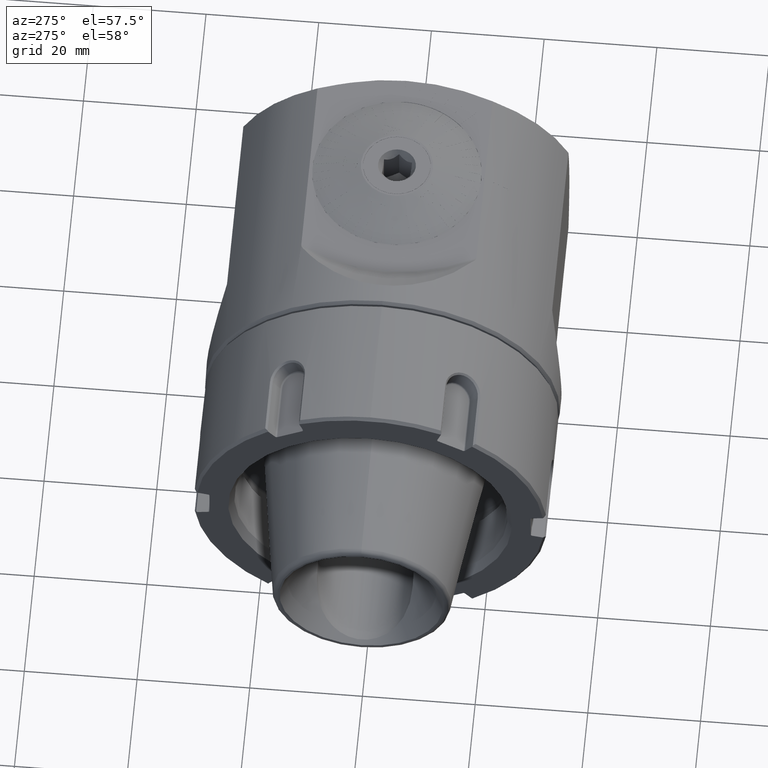
[diagram: clean part render]
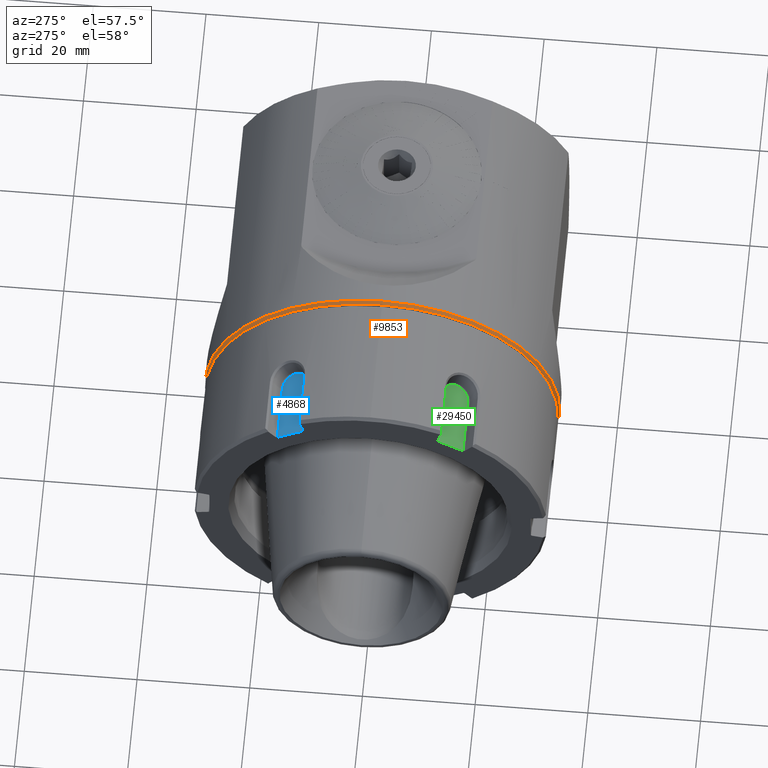
[diagram: same view with three faces highlighted in distinct colors, each labeled with its STEP entity id]
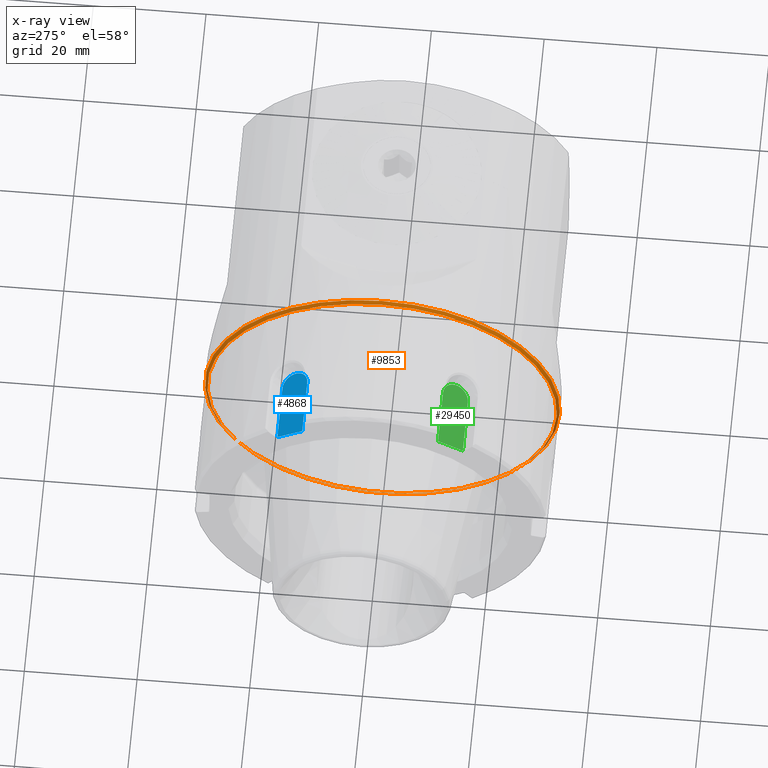
[diagram: x-ray of the same camera — body ghosted, the three highlighted faces saturated]
A machine part, auxiliary view with three faces highlighted in distinct colors.
The next image is the same camera in x-ray (body ghosted, the three faces saturated) — at least one of them is partly hidden behind the body in this view.
Their STEP definitions:

[orange] entity #9853 — the highlighted conical surface has half-angle 45 deg.
#984 = FACE_BOUND ( 'NONE', #7465, .T. ) ;
#1616 = AXIS2_PLACEMENT_3D ( 'NONE', #2303, #2917, #26488 ) ;
#1628 = AXIS2_PLACEMENT_3D ( 'NONE', #24349, #3242, #5686 ) ;
#2303 = CARTESIAN_POINT ( 'NONE',  ( 0.4999999999999865700, 0.0000000000000000000, 0.0000000000000000000 ) ) ;
#2917 = DIRECTION ( 'NONE',  ( 1.000000000000000000, 0.0000000000000000000, 0.0000000000000000000 ) ) ;
#3242 = DIRECTION ( 'NONE',  ( -1.000000000000000000, -0.0000000000000000000, -0.0000000000000000000 ) ) ;
#3847 = DIRECTION ( 'NONE',  ( -1.000000000000000000, -0.0000000000000000000, -0.0000000000000000000 ) ) ;
#4690 = FACE_OUTER_BOUND ( 'NONE', #23499, .T. ) ;
#5686 = DIRECTION ( 'NONE',  ( 0.0000000000000000000, 0.0000000000000000000, 1.000000000000000000 ) ) ;
#7465 = EDGE_LOOP ( 'NONE', ( #17324 ) ) ;
#8709 = VERTEX_POINT ( 'NONE', #12274 ) ;
#9853 = ADVANCED_FACE ( 'NONE', ( #984, #4690 ), #18318, .T. ) ;
#9928 = CIRCLE ( 'NONE', #26491, 31.50000000000000000 ) ;
#12274 = CARTESIAN_POINT ( 'NONE',  ( -1.387778780781445700E-014, 0.0000000000000000000, 31.00000000000000700 ) ) ;
#14561 = CARTESIAN_POINT ( 'NONE',  ( 0.4999999999999865700, 0.0000000000000000000, 31.50000000000000000 ) ) ;
#15723 = DIRECTION ( 'NONE',  ( 0.0000000000000000000, 0.0000000000000000000, 1.000000000000000000 ) ) ;
#17324 = ORIENTED_EDGE ( 'NONE', *, *, #30406, .F. ) ;
#18318 = CONICAL_SURFACE ( 'NONE', #1616, 31.50000000000000000, 0.7853981633974415100 ) ;
#21687 = CIRCLE ( 'NONE', #1628, 31.00000000000000700 ) ;
#23499 = EDGE_LOOP ( 'NONE', ( #25840 ) ) ;
#24349 = CARTESIAN_POINT ( 'NONE',  ( -1.387778780781445700E-014, 0.0000000000000000000, 0.0000000000000000000 ) ) ;
#25840 = ORIENTED_EDGE ( 'NONE', *, *, #30479, .T. ) ;
#26488 = DIRECTION ( 'NONE',  ( 0.0000000000000000000, 0.0000000000000000000, -1.000000000000000000 ) ) ;
#26491 = AXIS2_PLACEMENT_3D ( 'NONE', #27330, #3847, #15723 ) ;
#27330 = CARTESIAN_POINT ( 'NONE',  ( 0.4999999999999865700, 0.0000000000000000000, 0.0000000000000000000 ) ) ;
#30049 = VERTEX_POINT ( 'NONE', #14561 ) ;
#30406 = EDGE_CURVE ( 'NONE', #8709, #8709, #21687, .T. ) ;
#30479 = EDGE_CURVE ( 'NONE', #30049, #30049, #9928, .T. ) ;

[blue] entity #4868 — the highlighted planar face has unit normal (0, 0.5, 0.866).
#151 = LINE ( 'NONE', #20728, #11944 ) ;
#558 = DIRECTION ( 'NONE',  ( 1.000000000000000000, 7.364287248711515300E-017, -4.251773225433436700E-017 ) ) ;
#1517 = EDGE_CURVE ( 'NONE', #30126, #17391, #14602, .T. ) ;
#1748 = CARTESIAN_POINT ( 'NONE',  ( -2.300000000000004300, 14.25000000000028800, 24.68172400785633500 ) ) ;
#1964 = EDGE_CURVE ( 'NONE', #17391, #21335, #151, .T. ) ;
#2846 = EDGE_CURVE ( 'NONE', #21335, #4451, #3027, .T. ) ;
#3027 = LINE ( 'NONE', #28771, #3768 ) ;
#3479 = FACE_OUTER_BOUND ( 'NONE', #16808, .T. ) ;
#3768 = VECTOR ( 'NONE', #558, 1000.000000000000000 ) ;
#4418 = PLANE ( 'NONE',  #6127 ) ;
#4451 = VERTEX_POINT ( 'NONE', #25480 ) ;
#4586 = CARTESIAN_POINT ( 'NONE',  ( -2.300000000000003400, 16.45686665152499700, 23.40758895253290500 ) ) ;
#4868 = ADVANCED_FACE ( 'NONE', ( #3479 ), #4418, .T. ) ;
#4873 = ORIENTED_EDGE ( 'NONE', *, *, #2846, .T. ) ;
#6127 = AXIS2_PLACEMENT_3D ( 'NONE', #1748, #30029, #20798 ) ;
#8423 = DIRECTION ( 'NONE',  ( 0.0000000000000000000, -0.8660254037844329300, 0.5000000000000098800 ) ) ;
#9395 = CARTESIAN_POINT ( 'NONE',  ( -12.50000000000000400, 16.45686665152499700, 23.40758895253290500 ) ) ;
#9833 = CARTESIAN_POINT ( 'NONE',  ( -12.50000000000000400, 12.04313334847557600, 25.95585906317977300 ) ) ;
#10277 = ORIENTED_EDGE ( 'NONE', *, *, #1517, .T. ) ;
#11047 = DIRECTION ( 'NONE',  ( 0.0000000000000000000, -0.8660254037844328200, 0.5000000000000101000 ) ) ;
#11944 = VECTOR ( 'NONE', #11047, 1000.000000000000000 ) ;
#14567 = EDGE_CURVE ( 'NONE', #4451, #30126, #21029, .T. ) ;
#14602 = LINE ( 'NONE', #21173, #26365 ) ;
#16808 = EDGE_LOOP ( 'NONE', ( #25536, #10277, #23159, #4873 ) ) ;
#17391 = VERTEX_POINT ( 'NONE', #9395 ) ;
#20728 = CARTESIAN_POINT ( 'NONE',  ( -12.50000000000000400, 11.82512886940387600, 26.08172400785636600 ) ) ;
#20798 = DIRECTION ( 'NONE',  ( 0.0000000000000000000, -0.8660254037844328200, 0.5000000000000101000 ) ) ;
#21029 = CIRCLE ( 'NONE', #24832, 2.548270110646814400 ) ;
#21173 = CARTESIAN_POINT ( 'NONE',  ( -12.50000000000000400, 16.45686665152499700, 23.40758895253290500 ) ) ;
#21335 = VERTEX_POINT ( 'NONE', #9833 ) ;
#23159 = ORIENTED_EDGE ( 'NONE', *, *, #1964, .T. ) ;
#24832 = AXIS2_PLACEMENT_3D ( 'NONE', #27470, #25311, #8423 ) ;
#25311 = DIRECTION ( 'NONE',  ( 0.0000000000000000000, 0.5000000000000101000, 0.8660254037844328200 ) ) ;
#25480 = CARTESIAN_POINT ( 'NONE',  ( -2.300000000000003800, 12.04313334847557800, 25.95585906317977300 ) ) ;
#25536 = ORIENTED_EDGE ( 'NONE', *, *, #14567, .T. ) ;
#25609 = DIRECTION ( 'NONE',  ( -1.000000000000000000, 7.364287248711515300E-017, -4.251773225433436700E-017 ) ) ;
#26365 = VECTOR ( 'NONE', #25609, 1000.000000000000000 ) ;
#27470 = CARTESIAN_POINT ( 'NONE',  ( -2.300000000000004300, 14.25000000000028600, 24.68172400785633500 ) ) ;
#28771 = CARTESIAN_POINT ( 'NONE',  ( -2.300000000000003800, 12.04313334847557800, 25.95585906317977300 ) ) ;
#30029 = DIRECTION ( 'NONE',  ( 0.0000000000000000000, 0.5000000000000101000, 0.8660254037844328200 ) ) ;
#30126 = VERTEX_POINT ( 'NONE', #4586 ) ;

[green] entity #29450 — the highlighted planar face has unit normal (0, -0.5, 0.866).
#1052 = ORIENTED_EDGE ( 'NONE', *, *, #2754, .T. ) ;
#1724 = DIRECTION ( 'NONE',  ( 0.0000000000000000000, -0.8660254037844432600, -0.4999999999999919500 ) ) ;
#1804 = DIRECTION ( 'NONE',  ( 0.0000000000000000000, -0.8660254037844433700, -0.4999999999999919000 ) ) ;
#1843 = VECTOR ( 'NONE', #1724, 1000.000000000000000 ) ;
#1873 = CARTESIAN_POINT ( 'NONE',  ( -2.300000000000003800, -16.45686665152450300, 23.40758895253324600 ) ) ;
#2541 = LINE ( 'NONE', #1873, #26847 ) ;
#2754 = EDGE_CURVE ( 'NONE', #26156, #18259, #21473, .T. ) ;
#5458 = DIRECTION ( 'NONE',  ( 0.0000000000000000000, -0.4999999999999919500, 0.8660254037844432600 ) ) ;
#5620 = ORIENTED_EDGE ( 'NONE', *, *, #15946, .T. ) ;
#8722 = CARTESIAN_POINT ( 'NONE',  ( -12.50000000000000400, -16.67487113059621300, 23.28172400785665600 ) ) ;
#8983 = DIRECTION ( 'NONE',  ( 1.000000000000000000, 7.364287248711604000E-017, 4.251773225433282000E-017 ) ) ;
#9259 = ORIENTED_EDGE ( 'NONE', *, *, #28260, .T. ) ;
#9357 = CARTESIAN_POINT ( 'NONE',  ( -12.50000000000000400, -12.04313334847503500, 25.95585906318002100 ) ) ;
#9488 = FACE_OUTER_BOUND ( 'NONE', #24383, .T. ) ;
#9852 = AXIS2_PLACEMENT_3D ( 'NONE', #23013, #11071, #1804 ) ;
#11071 = DIRECTION ( 'NONE',  ( 0.0000000000000000000, -0.4999999999999919500, 0.8660254037844432600 ) ) ;
#12089 = VERTEX_POINT ( 'NONE', #13682 ) ;
#13395 = CARTESIAN_POINT ( 'NONE',  ( -12.50000000000000400, -12.04313334847503500, 25.95585906318002100 ) ) ;
#13682 = CARTESIAN_POINT ( 'NONE',  ( -12.50000000000000400, -16.45686665152450300, 23.40758895253324600 ) ) ;
#13911 = LINE ( 'NONE', #13395, #25302 ) ;
#15126 = CARTESIAN_POINT ( 'NONE',  ( -2.300000000000003400, -12.04313334847503500, 25.95585906318002100 ) ) ;
#15946 = EDGE_CURVE ( 'NONE', #12089, #26156, #2541, .T. ) ;
#18259 = VERTEX_POINT ( 'NONE', #15126 ) ;
#20480 = DIRECTION ( 'NONE',  ( -1.000000000000000000, 7.364287248711604000E-017, 4.251773225433282000E-017 ) ) ;
#21473 = CIRCLE ( 'NONE', #9852, 2.548270110646816200 ) ;
#22670 = CARTESIAN_POINT ( 'NONE',  ( -2.300000000000003800, -16.45686665152450300, 23.40758895253324600 ) ) ;
#22834 = LINE ( 'NONE', #8722, #1843 ) ;
#23013 = CARTESIAN_POINT ( 'NONE',  ( -2.300000000000004300, -14.24999999999977100, 24.68172400785663400 ) ) ;
#24383 = EDGE_LOOP ( 'NONE', ( #1052, #26787, #9259, #5620 ) ) ;
#25302 = VECTOR ( 'NONE', #20480, 1000.000000000000000 ) ;
#25346 = EDGE_CURVE ( 'NONE', #18259, #26927, #13911, .T. ) ;
#26156 = VERTEX_POINT ( 'NONE', #22670 ) ;
#26285 = PLANE ( 'NONE',  #29396 ) ;
#26484 = DIRECTION ( 'NONE',  ( 0.0000000000000000000, -0.8660254037844432600, -0.4999999999999919500 ) ) ;
#26787 = ORIENTED_EDGE ( 'NONE', *, *, #25346, .T. ) ;
#26847 = VECTOR ( 'NONE', #8983, 1000.000000000000000 ) ;
#26927 = VERTEX_POINT ( 'NONE', #9357 ) ;
#28260 = EDGE_CURVE ( 'NONE', #26927, #12089, #22834, .T. ) ;
#29133 = CARTESIAN_POINT ( 'NONE',  ( -2.300000000000004300, -14.24999999999977100, 24.68172400785663400 ) ) ;
#29396 = AXIS2_PLACEMENT_3D ( 'NONE', #29133, #5458, #26484 ) ;
#29450 = ADVANCED_FACE ( 'NONE', ( #9488 ), #26285, .T. ) ;